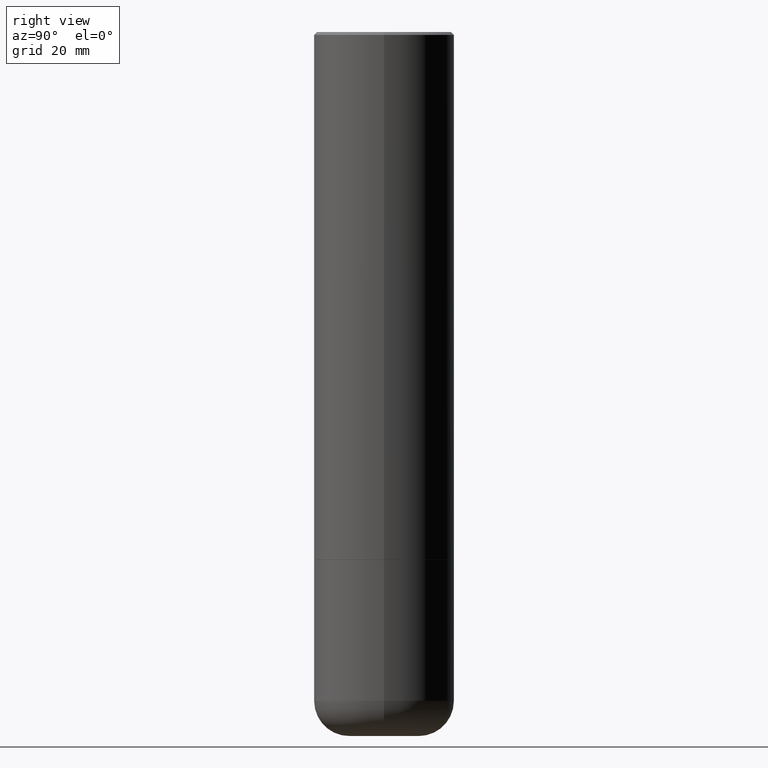
[diagram: clean part render]
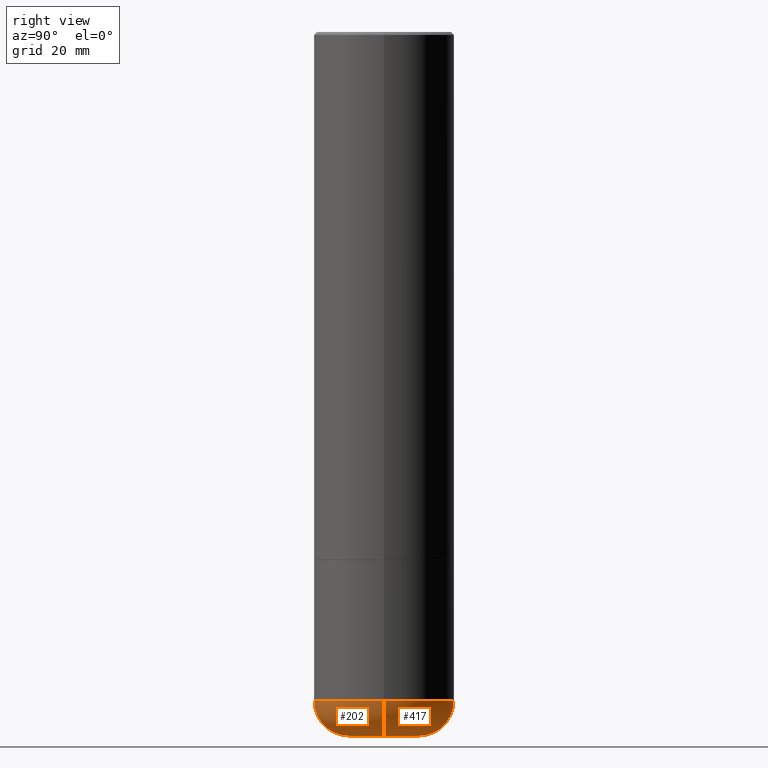
[diagram: same view with one multi-face feature highlighted, each face labeled with its STEP entity id]
A machine part, right view. The highlighted faces form ONE feature: a constant-radius fillet chain: 2 tangent blend faces with common blend radius 6.35 mm. The faces share edges in the B-rep.
Their STEP definitions:
[1] entity #417 (Torus):
#7 = CARTESIAN_POINT ( 'NONE',  ( -0.2478183661254081127, -1.436420360638221795E-14, -5.000000000000000000 ) ) ;
#30 = VERTEX_POINT ( 'NONE', #88 ) ;
#48 = VERTEX_POINT ( 'NONE', #81 ) ;
#52 = AXIS2_PLACEMENT_3D ( 'NONE', #476, #473, #431 ) ;
#57 = VERTEX_POINT ( 'NONE', #7 ) ;
#58 = DIRECTION ( 'NONE',  ( 7.105427357601001859E-15, 1.000000000000000000, -3.491481338843145583E-15 ) ) ;
#67 = CARTESIAN_POINT ( 'NONE',  ( -0.2500000000000002776, -1.480821275633241089E-14, -4.750009519233957533 ) ) ;
#80 = DIRECTION ( 'NONE',  ( 1.000000000000000000, -6.982962677686273021E-15, 0.000000000000000000 ) ) ;
#81 = CARTESIAN_POINT ( 'NONE',  ( -0.4999999999999999445, -1.128609862939673003E-14, -4.750009519233957533 ) ) ;
#88 = CARTESIAN_POINT ( 'NONE',  ( 0.5000000000000000000, -2.007605093457579787E-14, -4.750009519233957533 ) ) ;
#97 = AXIS2_PLACEMENT_3D ( 'NONE', #67, #58, #141 ) ;
#116 = DIRECTION ( 'NONE',  ( 1.000000000000000000, -6.982962677686266711E-15, 0.000000000000000000 ) ) ;
#141 = DIRECTION ( 'NONE',  ( -1.000000000000000000, 7.105427357601000281E-15, 0.000000000000000000 ) ) ;
#157 = ORIENTED_EDGE ( 'NONE', *, *, #488, .T. ) ;
#158 = DIRECTION ( 'NONE',  ( 1.000000000000000000, -6.982962677686265133E-15, 4.883557194083112340E-29 ) ) ;
#162 = VERTEX_POINT ( 'NONE', #440 ) ;
#166 = AXIS2_PLACEMENT_3D ( 'NONE', #402, #483, #116 ) ;
#178 = CIRCLE ( 'NONE', #220, 0.2478183661254080850 ) ;
#185 = EDGE_CURVE ( 'NONE', #30, #48, #365, .T. ) ;
#209 = AXIS2_PLACEMENT_3D ( 'NONE', #259, #377, #158 ) ;
#220 = AXIS2_PLACEMENT_3D ( 'NONE', #415, #470, #80 ) ;
#258 = EDGE_LOOP ( 'NONE', ( #277, #157, #426, #416 ) ) ;
#259 = CARTESIAN_POINT ( 'NONE',  ( 1.161600010836909978E-28, -1.658456959573266451E-14, -4.750009519233957533 ) ) ;
#277 = ORIENTED_EDGE ( 'NONE', *, *, #298, .T. ) ;
#298 = EDGE_CURVE ( 'NONE', #162, #57, #178, .T. ) ;
#299 = CIRCLE ( 'NONE', #52, 0.2499999999999998612 ) ;
#335 = EDGE_CURVE ( 'NONE', #162, #30, #299, .T. ) ;
#365 = CIRCLE ( 'NONE', #166, 0.5000000000000000000 ) ;
#370 = FACE_OUTER_BOUND ( 'NONE', #258, .T. ) ;
#374 = TOROIDAL_SURFACE ( 'NONE', #209, 0.2500000000000002776, 0.2499999999999998612 ) ;
#377 = DIRECTION ( 'NONE',  ( -2.445468806185136597E-29, 3.491481338843145583E-15, 1.000000000000000000 ) ) ;
#387 = CIRCLE ( 'NONE', #97, 0.2499999999999998612 ) ;
#402 = CARTESIAN_POINT ( 'NONE',  ( 1.161600010836909978E-28, -1.658456959573266451E-14, -4.750009519233957533 ) ) ;
#415 = CARTESIAN_POINT ( 'NONE',  ( 1.222734403092568523E-28, -1.745740669421572989E-14, -5.000000000000000000 ) ) ;
#416 = ORIENTED_EDGE ( 'NONE', *, *, #335, .F. ) ;
#417 = ADVANCED_FACE ( 'NONE', ( #370 ), #374, .T. ) ;
#426 = ORIENTED_EDGE ( 'NONE', *, *, #185, .F. ) ;
#431 = DIRECTION ( 'NONE',  ( 1.000000000000000000, -6.982962677686266711E-15, 0.000000000000000000 ) ) ;
#440 = CARTESIAN_POINT ( 'NONE',  ( 0.2478183661254080850, -1.918791309571464730E-14, -5.000000000000000000 ) ) ;
#470 = DIRECTION ( 'NONE',  ( -2.445468806185136597E-29, 3.491481338843145583E-15, 1.000000000000000000 ) ) ;
#473 = DIRECTION ( 'NONE',  ( -6.982962677686266711E-15, -1.000000000000000000, 3.491481338843145583E-15 ) ) ;
#476 = CARTESIAN_POINT ( 'NONE',  ( 0.2500000000000002776, -1.833031026515423119E-14, -4.750009519233957533 ) ) ;
#483 = DIRECTION ( 'NONE',  ( -2.445468806185136597E-29, 3.491481338843145583E-15, 1.000000000000000000 ) ) ;
#488 = EDGE_CURVE ( 'NONE', #57, #48, #387, .T. ) ;
[2] entity #202 (Torus):
#7 = CARTESIAN_POINT ( 'NONE',  ( -0.2478183661254081127, -1.436420360638221795E-14, -5.000000000000000000 ) ) ;
#12 = ORIENTED_EDGE ( 'NONE', *, *, #340, .F. ) ;
#27 = DIRECTION ( 'NONE',  ( -2.445468806185136597E-29, 3.491481338843145583E-15, 1.000000000000000000 ) ) ;
#30 = VERTEX_POINT ( 'NONE', #88 ) ;
#38 = DIRECTION ( 'NONE',  ( 1.000000000000000000, -6.982962677686273021E-15, 0.000000000000000000 ) ) ;
#46 = CIRCLE ( 'NONE', #112, 0.2478183661254080850 ) ;
#48 = VERTEX_POINT ( 'NONE', #81 ) ;
#52 = AXIS2_PLACEMENT_3D ( 'NONE', #476, #473, #431 ) ;
#57 = VERTEX_POINT ( 'NONE', #7 ) ;
#58 = DIRECTION ( 'NONE',  ( 7.105427357601001859E-15, 1.000000000000000000, -3.491481338843145583E-15 ) ) ;
#67 = CARTESIAN_POINT ( 'NONE',  ( -0.2500000000000002776, -1.480821275633241089E-14, -4.750009519233957533 ) ) ;
#69 = CIRCLE ( 'NONE', #437, 0.5000000000000000000 ) ;
#74 = CARTESIAN_POINT ( 'NONE',  ( 1.222734403092568523E-28, -1.745740669421572989E-14, -5.000000000000000000 ) ) ;
#75 = DIRECTION ( 'NONE',  ( 1.000000000000000000, -6.982962677686266711E-15, 0.000000000000000000 ) ) ;
#81 = CARTESIAN_POINT ( 'NONE',  ( -0.4999999999999999445, -1.128609862939673003E-14, -4.750009519233957533 ) ) ;
#88 = CARTESIAN_POINT ( 'NONE',  ( 0.5000000000000000000, -2.007605093457579787E-14, -4.750009519233957533 ) ) ;
#97 = AXIS2_PLACEMENT_3D ( 'NONE', #67, #58, #141 ) ;
#112 = AXIS2_PLACEMENT_3D ( 'NONE', #74, #27, #38 ) ;
#141 = DIRECTION ( 'NONE',  ( -1.000000000000000000, 7.105427357601000281E-15, 0.000000000000000000 ) ) ;
#143 = DIRECTION ( 'NONE',  ( -2.445468806185136597E-29, 3.491481338843145583E-15, 1.000000000000000000 ) ) ;
#159 = FACE_OUTER_BOUND ( 'NONE', #206, .T. ) ;
#162 = VERTEX_POINT ( 'NONE', #440 ) ;
#167 = AXIS2_PLACEMENT_3D ( 'NONE', #235, #275, #197 ) ;
#197 = DIRECTION ( 'NONE',  ( 1.000000000000000000, -6.982962677686265133E-15, 4.883557194083112340E-29 ) ) ;
#202 = ADVANCED_FACE ( 'NONE', ( #159 ), #297, .T. ) ;
#206 = EDGE_LOOP ( 'NONE', ( #452, #321, #418, #12 ) ) ;
#235 = CARTESIAN_POINT ( 'NONE',  ( 1.161600010836909978E-28, -1.658456959573266451E-14, -4.750009519233957533 ) ) ;
#245 = CARTESIAN_POINT ( 'NONE',  ( 1.161600010836909978E-28, -1.658456959573266451E-14, -4.750009519233957533 ) ) ;
#275 = DIRECTION ( 'NONE',  ( -2.445468806185136597E-29, 3.491481338843145583E-15, 1.000000000000000000 ) ) ;
#297 = TOROIDAL_SURFACE ( 'NONE', #167, 0.2500000000000002776, 0.2499999999999998612 ) ;
#299 = CIRCLE ( 'NONE', #52, 0.2499999999999998612 ) ;
#321 = ORIENTED_EDGE ( 'NONE', *, *, #352, .T. ) ;
#335 = EDGE_CURVE ( 'NONE', #162, #30, #299, .T. ) ;
#340 = EDGE_CURVE ( 'NONE', #48, #30, #69, .T. ) ;
#352 = EDGE_CURVE ( 'NONE', #57, #162, #46, .T. ) ;
#387 = CIRCLE ( 'NONE', #97, 0.2499999999999998612 ) ;
#418 = ORIENTED_EDGE ( 'NONE', *, *, #335, .T. ) ;
#431 = DIRECTION ( 'NONE',  ( 1.000000000000000000, -6.982962677686266711E-15, 0.000000000000000000 ) ) ;
#437 = AXIS2_PLACEMENT_3D ( 'NONE', #245, #143, #75 ) ;
#440 = CARTESIAN_POINT ( 'NONE',  ( 0.2478183661254080850, -1.918791309571464730E-14, -5.000000000000000000 ) ) ;
#452 = ORIENTED_EDGE ( 'NONE', *, *, #488, .F. ) ;
#473 = DIRECTION ( 'NONE',  ( -6.982962677686266711E-15, -1.000000000000000000, 3.491481338843145583E-15 ) ) ;
#476 = CARTESIAN_POINT ( 'NONE',  ( 0.2500000000000002776, -1.833031026515423119E-14, -4.750009519233957533 ) ) ;
#488 = EDGE_CURVE ( 'NONE', #57, #48, #387, .T. ) ;